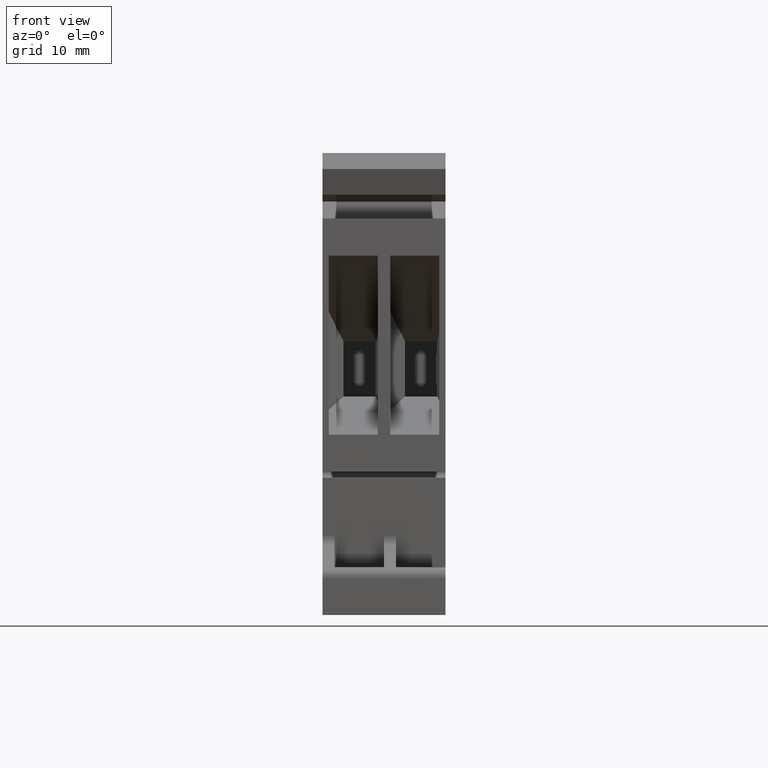
[diagram: clean part render]
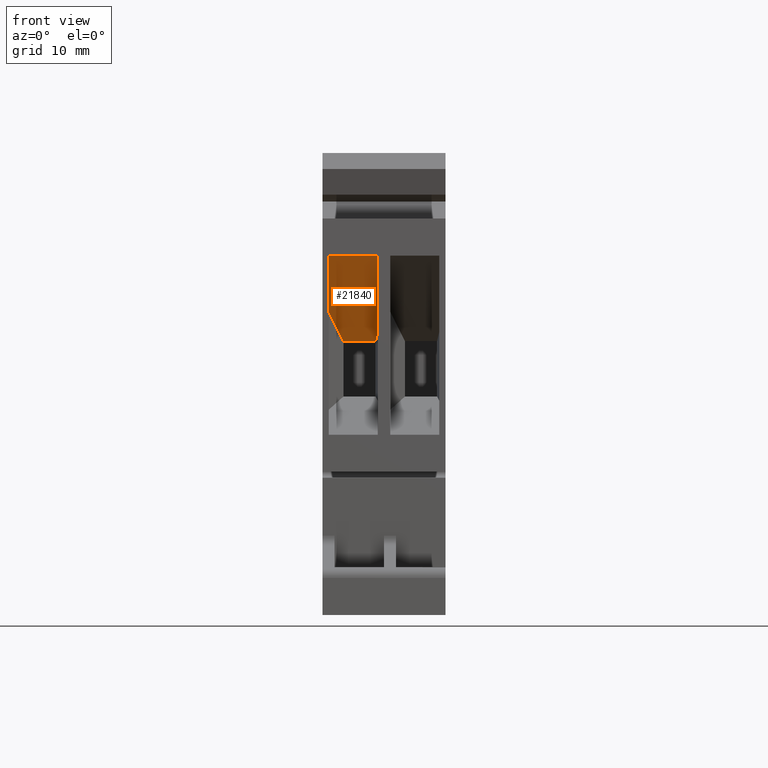
[diagram: same view with one face highlighted and labeled with its STEP entity id]
A machine part, front view. The second image highlights one B-rep face of the part: STEP entity #21840.
In plain terms, the highlighted planar face has unit normal (-0, 0.7568, 0.6536).
Its self-contained STEP definition (entity closure, byte-faithful):
#20520=CARTESIAN_POINT('',(-44.8520985338077,34.3295237515583,4.625));
#20530=VERTEX_POINT('',#20520);
#20560=CARTESIAN_POINT('',(-44.8520985338077,34.3295237515583,5.15));
#20570=DIRECTION('',(0.,0.,1.));
#20580=VECTOR('',#20570,1.);
#20590=LINE('',#20560,#20580);
#20600=CARTESIAN_POINT('',(-44.8520985338077,34.3295237515583,
0.525000000000004));
#20610=VERTEX_POINT('',#20600);
#20620=EDGE_CURVE('',#20610,#20530,#20590,.T.);
#21380=CARTESIAN_POINT('',(-44.8520985338077,34.3295237515583,1.75));
#21390=DIRECTION('',(0.756823007769156,0.653619870346096,0.));
#21400=DIRECTION('',(0.653619870346096,-0.756823007769156,0.));
#21410=AXIS2_PLACEMENT_3D('',#21380,#21390,#21400);
#21420=PLANE('',#21410);
#21430=CARTESIAN_POINT('',(-38.6770985338076,27.1795237515583,5.15));
#21440=DIRECTION('',(0.,0.,-1.));
#21450=VECTOR('',#21440,1.);
#21460=LINE('',#21430,#21450);
#21470=CARTESIAN_POINT('',(-38.6770985338076,27.1795237515583,4.45));
#21480=VERTEX_POINT('',#21470);
#21490=CARTESIAN_POINT('',(-38.6770985338076,27.1795237515583,1.75));
#21500=VERTEX_POINT('',#21490);
#21510=EDGE_CURVE('',#21480,#21500,#21460,.T.);
#21520=ORIENTED_EDGE('',*,*,#21510,.F.);
#21530=CARTESIAN_POINT('',(-23.4376536701711,9.53385075155829,
10.548497594321));
#21540=DIRECTION('',(0.611526032477599,-0.70808277444774,
0.353064719467406));
#21550=VECTOR('',#21540,1.);
#21560=LINE('',#21530,#21550);
#21570=CARTESIAN_POINT('',(-40.7988607730795,29.6363010812415,
0.525000000000004));
#21580=VERTEX_POINT('',#21570);
#21590=EDGE_CURVE('',#21580,#21500,#21560,.T.);
#21600=ORIENTED_EDGE('',*,*,#21590,.T.);
#21610=CARTESIAN_POINT('',(-23.4376536701711,9.5338507515583,
0.525000000000004));
#21620=DIRECTION('',(-0.653619870346096,0.756823007769156,0.));
#21630=VECTOR('',#21620,1.);
#21640=LINE('',#21610,#21630);
#21650=EDGE_CURVE('',#21580,#20610,#21640,.T.);
#21660=ORIENTED_EDGE('',*,*,#21650,.F.);
#21670=ORIENTED_EDGE('',*,*,#20620,.F.);
#21680=CARTESIAN_POINT('',(-23.4376536701711,9.5338507515583,4.625));
#21690=DIRECTION('',(0.653619870346096,-0.756823007769156,0.));
#21700=VECTOR('',#21690,1.);
#21710=LINE('',#21680,#21700);
#21720=CARTESIAN_POINT('',(-39.3285392448474,27.9338235222359,
4.62500000000001));
#21730=VERTEX_POINT('',#21720);
#21740=EDGE_CURVE('',#20530,#21730,#21710,.T.);
#21750=ORIENTED_EDGE('',*,*,#21740,.F.);
#21760=CARTESIAN_POINT('',(-23.4376536701711,9.5338507515583,
0.356146475126304));
#21770=DIRECTION('',(0.643771391053407,-0.745419505430254,
-0.172939749581399));
#21780=VECTOR('',#21770,1.);
#21790=LINE('',#21760,#21780);
#21800=EDGE_CURVE('',#21730,#21480,#21790,.T.);
#21810=ORIENTED_EDGE('',*,*,#21800,.F.);
#21820=EDGE_LOOP('',(#21810,#21750,#21670,#21660,#21600,#21520));
#21830=FACE_OUTER_BOUND('',#21820,.T.);
#21840=ADVANCED_FACE('',(#21830),#21420,.F.);